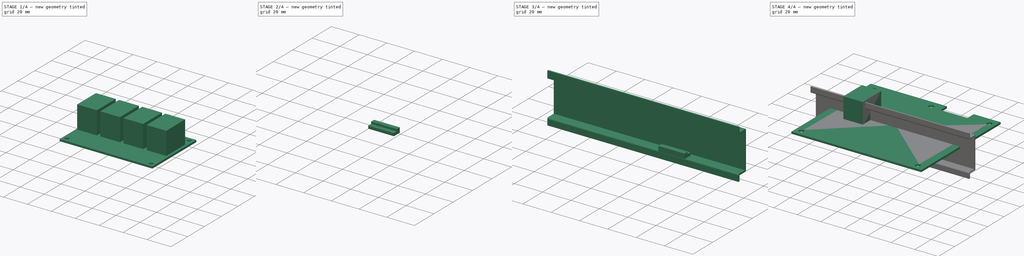
[diagram: build sequence overview — one tinted view per stage of 4, left to right]
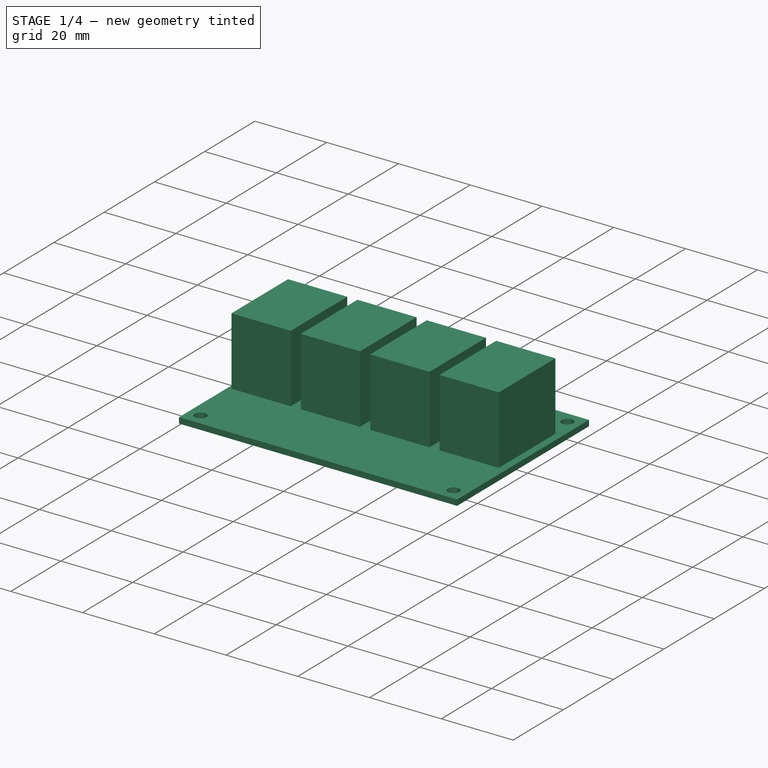
[diagram: stage 1 of 4 — iso view after this stage's code; geometry added in this stage tinted green]
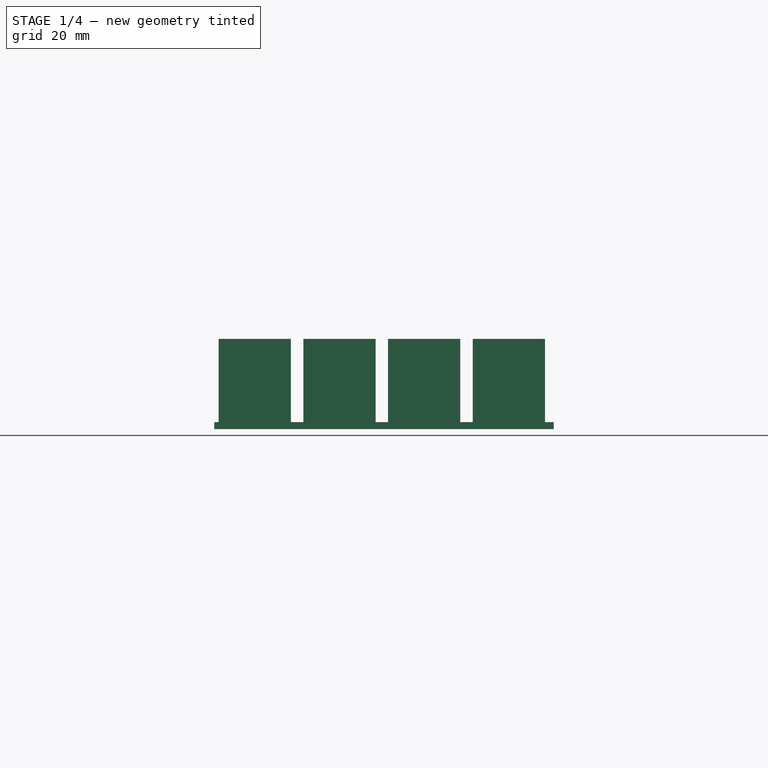
[diagram: stage 1 of 4 — front view after this stage's code; geometry added in this stage tinted green]
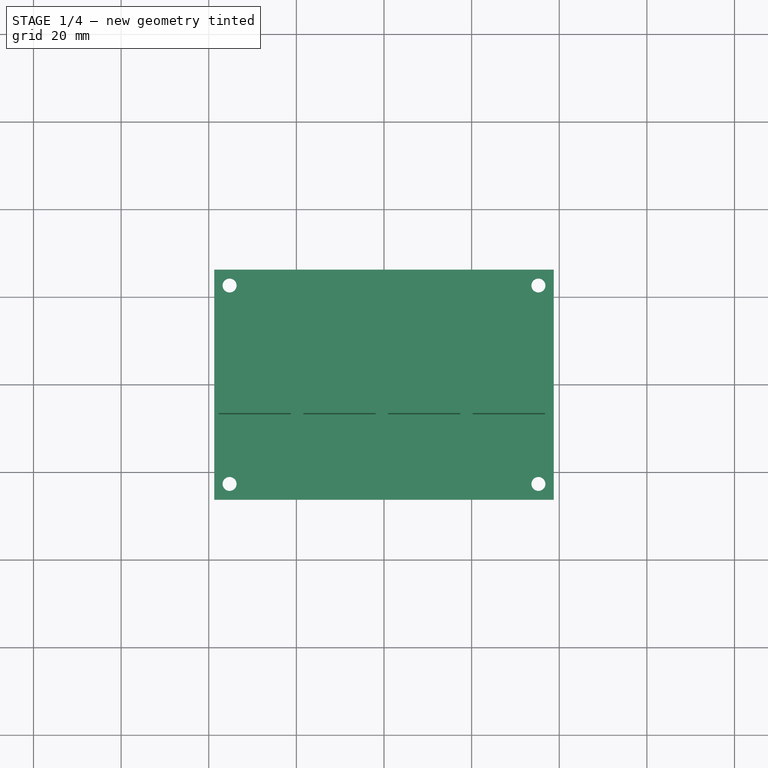
[diagram: stage 1 of 4 — top view after this stage's code; geometry added in this stage tinted green]
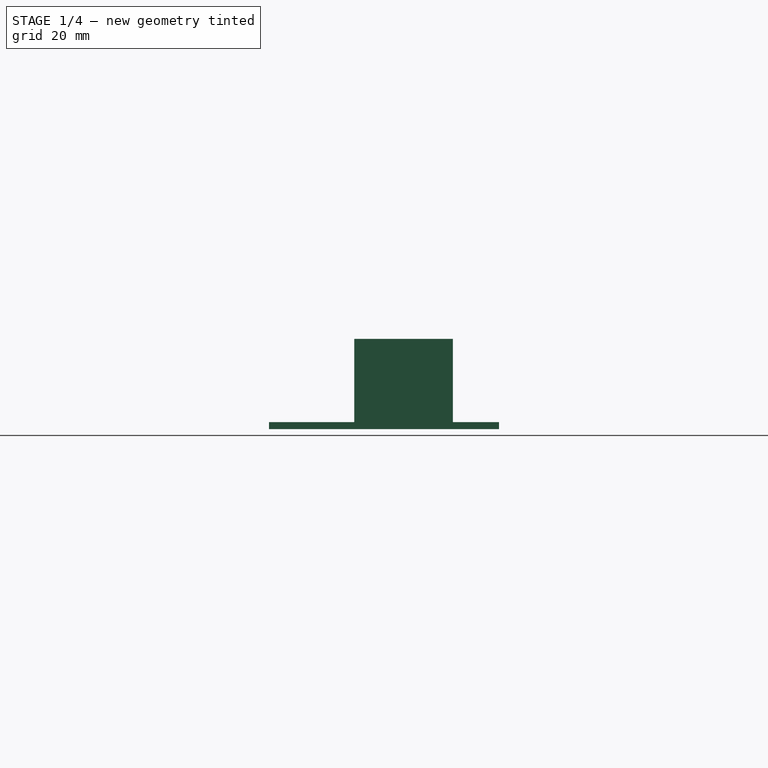
[diagram: stage 1 of 4 — right view after this stage's code; geometry added in this stage tinted green]
FCSTD DOCUMENT  (FreeCAD 0.18R16131 (Git))
Label: autopool_box
License: All rights reserved
LicenseURL: http://en.wikipedia.org/wiki/All_rights_reserved
objects: Sketcher::SketchObject×8, PartDesign::Pad×8, PartDesign::Body×6, App::Part×4, PartDesign::Fillet×2, PartDesign::ShapeBinder×2, PartDesign::LinearPattern×1, Part::Mirroring×1
note: 36 computed .brp shape members not serialized (recipe doc carries the construction recipe); baked Part::Feature solids carry a one-line shape summary decoded from their .brp

FEATURE [Sketcher::SketchObject] Sketch
  MapMode = 5
  Support = -> [XY_Plane001]
  sketch-geometry (12):
    g0: LineSegment StartX=-38.75 StartY=26.25 StartZ=0 EndX=38.75 EndY=26.25 EndZ=0
    g1: LineSegment StartX=38.75 StartY=26.25 StartZ=0 EndX=38.75 EndY=-26.25 EndZ=0
    g2: LineSegment StartX=38.75 StartY=-26.25 StartZ=0 EndX=-38.75 EndY=-26.25 EndZ=0
    g3: LineSegment StartX=-38.75 StartY=-26.25 StartZ=0 EndX=-38.75 EndY=26.25 EndZ=0
    g4: Circle CenterX=-35.25 CenterY=22.65 CenterZ=0 NormalX=0 NormalY=0 NormalZ=1 AngleXU=0 Radius=1.6
    g5: Circle CenterX=-35.25 CenterY=-22.65 CenterZ=0 NormalX=0 NormalY=0 NormalZ=1 AngleXU=0 Radius=1.6
    g6: Circle CenterX=35.25 CenterY=22.65 CenterZ=0 NormalX=0 NormalY=0 NormalZ=1 AngleXU=0 Radius=1.6
    g7: Circle CenterX=35.25 CenterY=-22.65 CenterZ=0 NormalX=0 NormalY=0 NormalZ=1 AngleXU=0 Radius=1.6
    g8: LineSegment [constr] StartX=-35.25 StartY=22.65 StartZ=0 EndX=35.25 EndY=22.65 EndZ=0
    g9: LineSegment [constr] StartX=35.25 StartY=22.65 StartZ=0 EndX=35.25 EndY=-22.65 EndZ=0
    g10: LineSegment [constr] StartX=35.25 StartY=-22.65 StartZ=0 EndX=-35.25 EndY=-22.65 EndZ=0
    g11: LineSegment [constr] StartX=-35.25 StartY=-22.65 StartZ=0 EndX=-35.25 EndY=22.65 EndZ=0
  constraints (31):
    c: Coincident(g0,g1)
    c: Coincident(g1,g2)
    c: Coincident(g2,g3)
    c: Coincident(g3,g0)
    c: Horizontal(g0)
    c: Horizontal(g2)
    c: Vertical(g1)
    c: Vertical(g3)
    c: Symmetric(g0,g1,g-1)
    c: DistanceX(g0,g0) = 77.5
    c: DistanceY(g1,g0) = 52.5
    c: DistanceY(g4,g0) = 3.6
    c: DistanceX(g0,g4) = 3.5
    c: Diameter(g4) = 3.2
    c: Equal(g4,g5)
    c: Equal(g5,g7)
    c: Equal(g7,g6)
    c: Coincident(g8,g9)
    c: Coincident(g9,g10)
    c: Coincident(g10,g11)
    c: Coincident(g11,g8)
    c: Horizontal(g8)
    c: Horizontal(g10)
    c: Vertical(g9)
    c: Vertical(g11)
    c: Coincident(g8,g4)
    c: DistanceX(g9,g1) = 3.5
    c: DistanceY(g1,g9) = 3.6
    c: Coincident(g6,g8)
    c: Coincident(g5,g10)
    c: Coincident(g7,g9)
FEATURE [PartDesign::Pad] Pad
  Length = 1.6
  Length2 = 100
  Profile = -> Sketch
  Type = 0
FEATURE [PartDesign::Body] Body003
  Group = -> [Sketch003,Pad003]
  Origin = -> Origin006
  Tip = -> Pad003
FEATURE [Sketcher::SketchObject] Sketch004
  MapMode = 5
  Placement = pos=(0,0,1.6) rot=(0,0,1;0rad)
  Support = -> [Pad]
  sketch-geometry (4):
    g0: LineSegment StartX=-37.75 StartY=15.7124 StartZ=0 EndX=-21.25 EndY=15.7124 EndZ=0
    g1: LineSegment StartX=-21.25 StartY=15.7124 StartZ=0 EndX=-21.25 EndY=-6.78761 EndZ=0
    g2: LineSegment StartX=-21.25 StartY=-6.78761 StartZ=0 EndX=-37.75 EndY=-6.78761 EndZ=0
    g3: LineSegment StartX=-37.75 StartY=-6.78761 StartZ=0 EndX=-37.75 EndY=15.7124 EndZ=0
  constraints (10):
    c: Coincident(g0,g1)
    c: Coincident(g1,g2)
    c: Coincident(g2,g3)
    c: Coincident(g3,g0)
    c: Horizontal(g0)
    c: Horizontal(g2)
    c: Vertical(g1)
    c: Vertical(g3)
    c: DistanceY(g1,g1) = 22.5
    c: DistanceX(g0,g0) = 16.5
FEATURE [PartDesign::Pad] Pad004
  BaseFeature = -> Pad
  Length = 19
  Length2 = 100
  Profile = -> Sketch004
  Type = 0
FEATURE [PartDesign::LinearPattern] LinearPattern
  BaseFeature = -> Pad004
  Direction = -> X_Axis001
  Length = 58
  Occurrences = 4
  Originals = -> [Pad004]
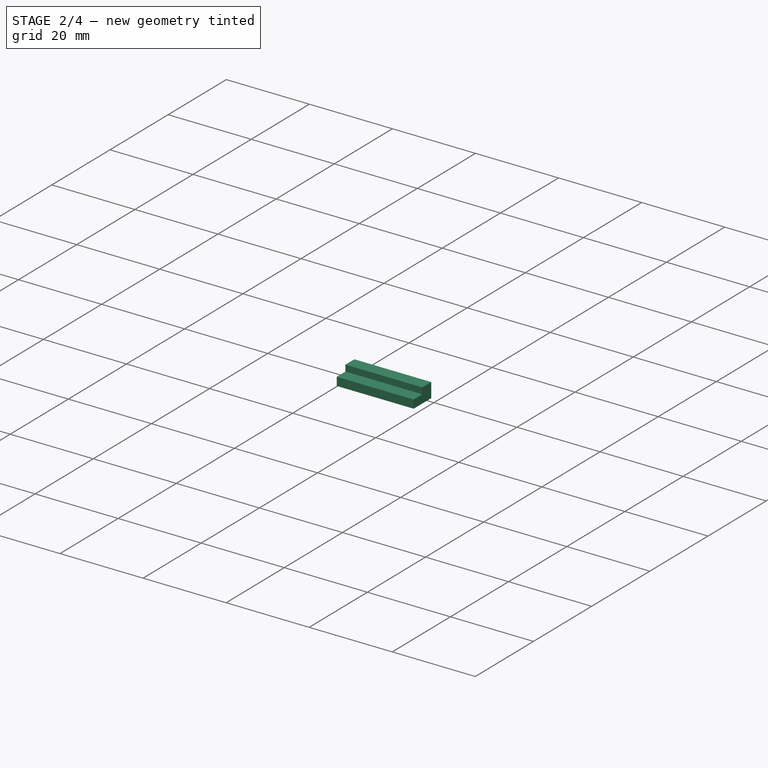
[diagram: stage 2 of 4 — iso view after this stage's code; geometry added in this stage tinted green]
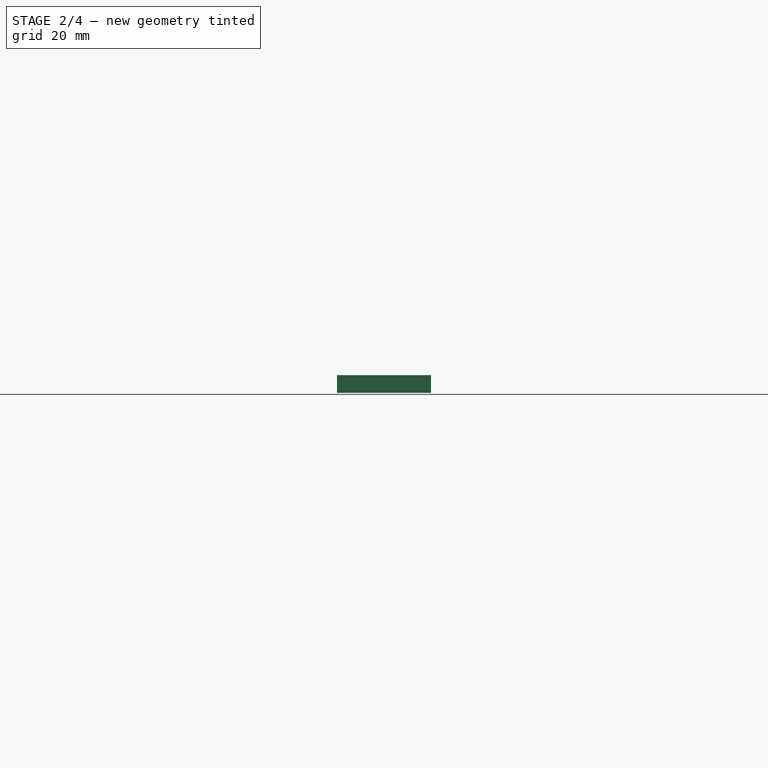
[diagram: stage 2 of 4 — front view after this stage's code; geometry added in this stage tinted green]
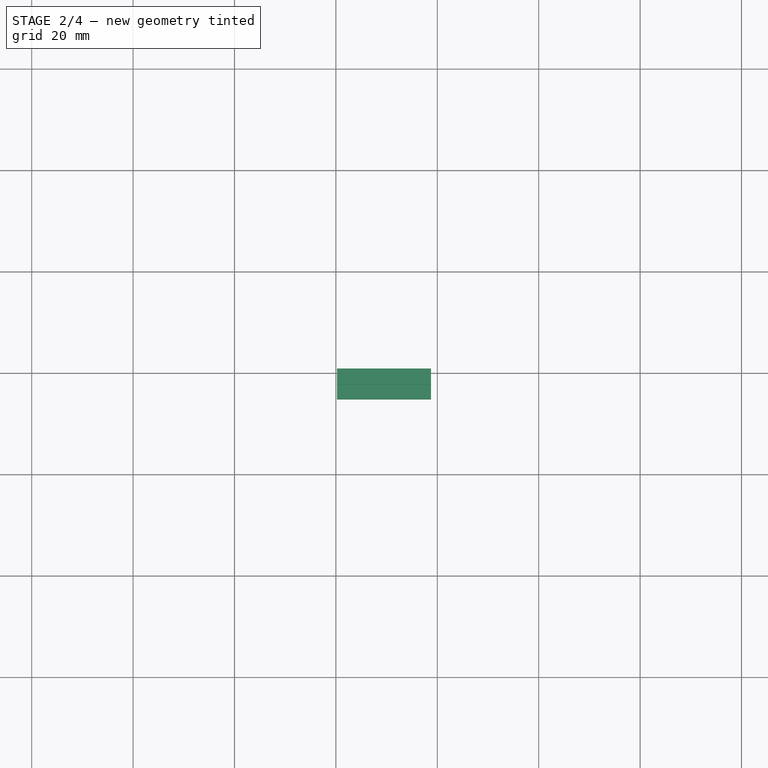
[diagram: stage 2 of 4 — top view after this stage's code; geometry added in this stage tinted green]
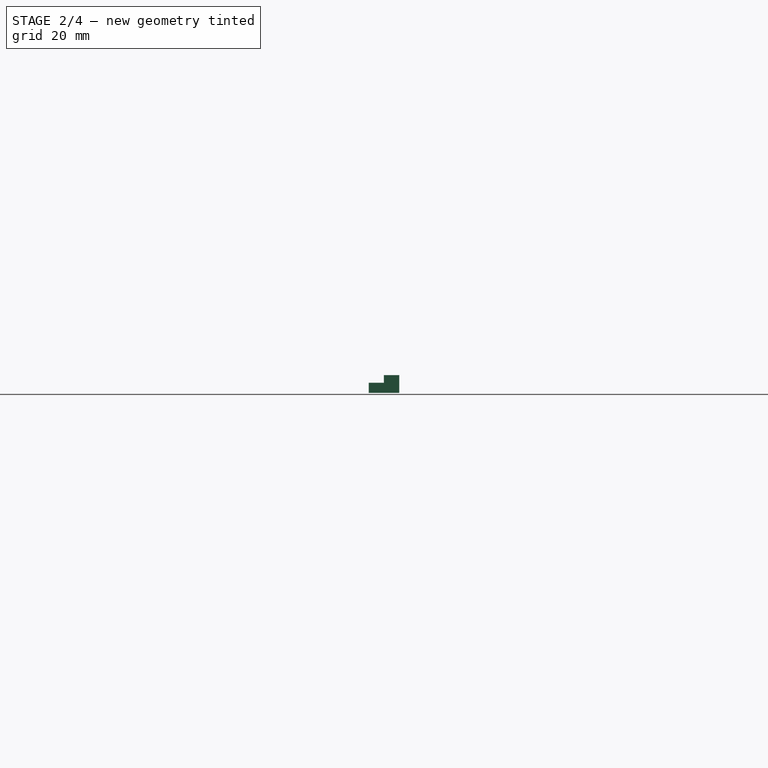
[diagram: stage 2 of 4 — right view after this stage's code; geometry added in this stage tinted green]
FEATURE [PartDesign::Body] Body004
  Group = -> [Sketch005,Pad005,Fillet,Fillet001]
  Origin = -> Origin007
  Tip = -> Fillet001
FEATURE [App::Part] Part002  label="din_rail_part"
  Group = -> [Body004]
  Origin = -> Origin004
  Placement = pos=(0,0,-9.5) rot=(1,0,0;-1.5708rad)
FEATURE [PartDesign::ShapeBinder] ShapeBinder
  Support = -> [LinearPattern]
  TraceSupport = false
FEATURE [Sketcher::SketchObject] Sketch006
  ExternalGeometry = -> [ShapeBinder]
  MapMode = 5
  Placement = pos=(0,0,0) rot=(1,0,0;3.14159rad)
  Support = -> [ShapeBinder]
  sketch-geometry (6):
    g0: LineSegment StartX=38.75 StartY=26.25 StartZ=0 EndX=20.2255 EndY=26.25 EndZ=0
    g1: LineSegment StartX=20.2255 StartY=26.25 StartZ=0 EndX=20.2255 EndY=-26.25 EndZ=0
    g2: LineSegment StartX=20.2255 StartY=-26.25 StartZ=0 EndX=38.75 EndY=-26.25 EndZ=0
    g3: LineSegment StartX=38.75 StartY=-26.25 StartZ=0 EndX=38.75 EndY=26.25 EndZ=0
    g4: Circle CenterX=35.25 CenterY=-22.65 CenterZ=0 NormalX=0 NormalY=0 NormalZ=1 AngleXU=0 Radius=1.6
    g5: Circle CenterX=35.25 CenterY=22.65 CenterZ=0 NormalX=0 NormalY=0 NormalZ=1 AngleXU=0 Radius=1.6
  constraints (12):
    c: Coincident(g0,g1)
    c: Coincident(g1,g2)
    c: Coincident(g2,g3)
    c: Coincident(g3,g0)
    c: Horizontal(g0)
    c: Horizontal(g2)
    c: Vertical(g1)
    c: Vertical(g3)
    c: Coincident(g0,g-4)
    c: PointOnObject(g1,g-5)
    c: Coincident(g4,g-6)
    c: Coincident(g5,g-7)
FEATURE [PartDesign::Pad] Pad006
  Length = 2
  Length2 = 100
  Profile = -> Sketch006
  Type = 0
FEATURE [PartDesign::Body] Body005  label="base"
  Group = -> [ShapeBinder,Sketch006,Pad006]
  Origin = -> Origin009
  Tip = -> Pad006
FEATURE [PartDesign::ShapeBinder] ShapeBinder001
  Placement = pos=(0,0,-2) rot=(0,0,1;0rad)
  Support = -> [Pad006]
  TraceSupport = false
FEATURE [Sketcher::SketchObject] Sketch009
  ExternalGeometry = -> [ShapeBinder001]
  MapMode = 5
  Placement = pos=(0,0,-2) rot=(1,0,0;3.14159rad)
  Support = -> [ShapeBinder001]
  sketch-geometry (4):
    g0: LineSegment StartX=20.2255 StartY=-17.8362 StartZ=0 EndX=38.75 EndY=-17.8362 EndZ=0
    g1: LineSegment StartX=38.75 StartY=-17.8362 StartZ=0 EndX=38.75 EndY=-20.8846 EndZ=0
    g2: LineSegment StartX=38.75 StartY=-20.8846 StartZ=0 EndX=20.2255 EndY=-20.8846 EndZ=0
    g3: LineSegment StartX=20.2255 StartY=-20.8846 StartZ=0 EndX=20.2255 EndY=-17.8362 EndZ=0
  constraints (10):
    c: Coincident(g0,g1)
    c: Coincident(g1,g2)
    c: Coincident(g2,g3)
    c: Coincident(g3,g0)
    c: Horizontal(g0)
    c: Horizontal(g2)
    c: Vertical(g1)
    c: Vertical(g3)
    c: PointOnObject(g0,g-3)
    c: PointOnObject(g1,g-4)
FEATURE [PartDesign::Pad] Pad009
  Length = 1.5
  Length2 = 100
  Placement = pos=(0,0,-2) rot=(0,0,1;0rad)
  Profile = -> Sketch009
  Type = 0
FEATURE [Sketcher::SketchObject] Sketch010
  ExternalGeometry = -> [Pad009]
  MapMode = 5
  Placement = pos=(0,0,-3.5) rot=(1,0,0;3.14159rad)
  Support = -> [Pad009]
  sketch-geometry (4):
    g0: LineSegment StartX=20.2255 StartY=-20.8846 StartZ=0 EndX=38.75 EndY=-20.8846 EndZ=0
    g1: LineSegment StartX=38.75 StartY=-20.8846 StartZ=0 EndX=38.75 EndY=-14.8508 EndZ=0
    g2: LineSegment StartX=38.75 StartY=-14.8508 StartZ=0 EndX=20.2255 EndY=-14.8508 EndZ=0
    g3: LineSegment StartX=20.2255 StartY=-14.8508 StartZ=0 EndX=20.2255 EndY=-20.8846 EndZ=0
  constraints (10):
    c: Coincident(g0,g1)
    c: Coincident(g1,g2)
    c: Coincident(g2,g3)
    c: Coincident(g3,g0)
    c: Horizontal(g0)
    c: Horizontal(g2)
    c: Vertical(g1)
    c: Vertical(g3)
    c: Coincident(g0,g-3)
    c: PointOnObject(g1,g-4)
FEATURE [PartDesign::Pad] Pad010
  BaseFeature = -> Pad009
  Length = 2
  Length2 = 100
  Placement = pos=(0,0,-2) rot=(0,0,1;0rad)
  Profile = -> Sketch010
  Type = 0
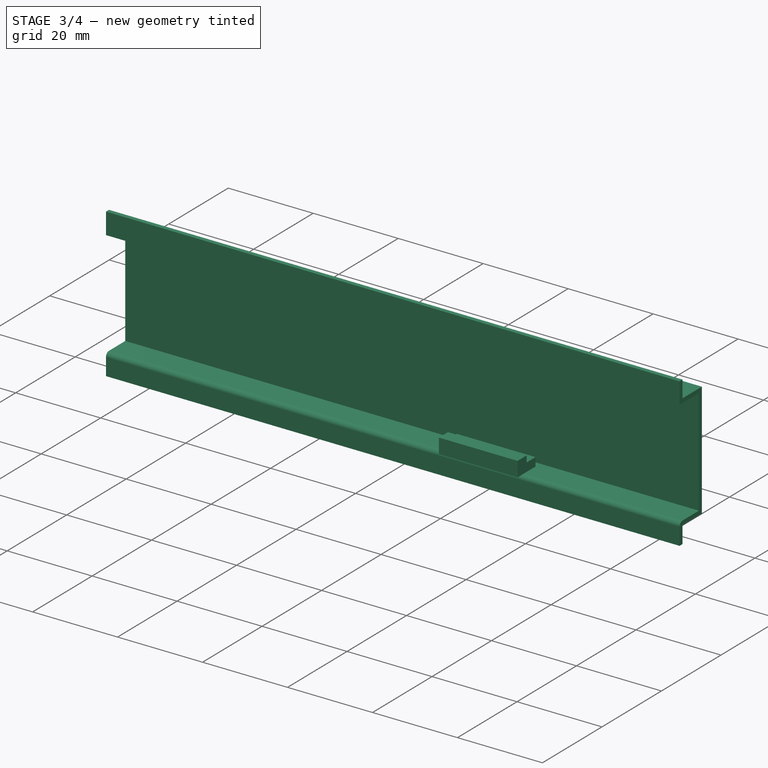
[diagram: stage 3 of 4 — iso view after this stage's code; geometry added in this stage tinted green]
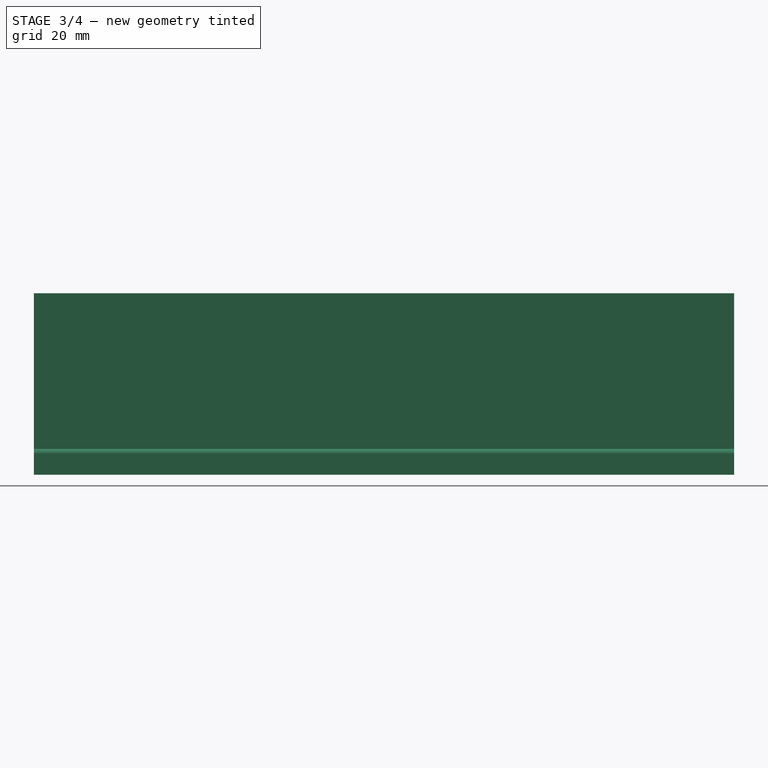
[diagram: stage 3 of 4 — front view after this stage's code; geometry added in this stage tinted green]
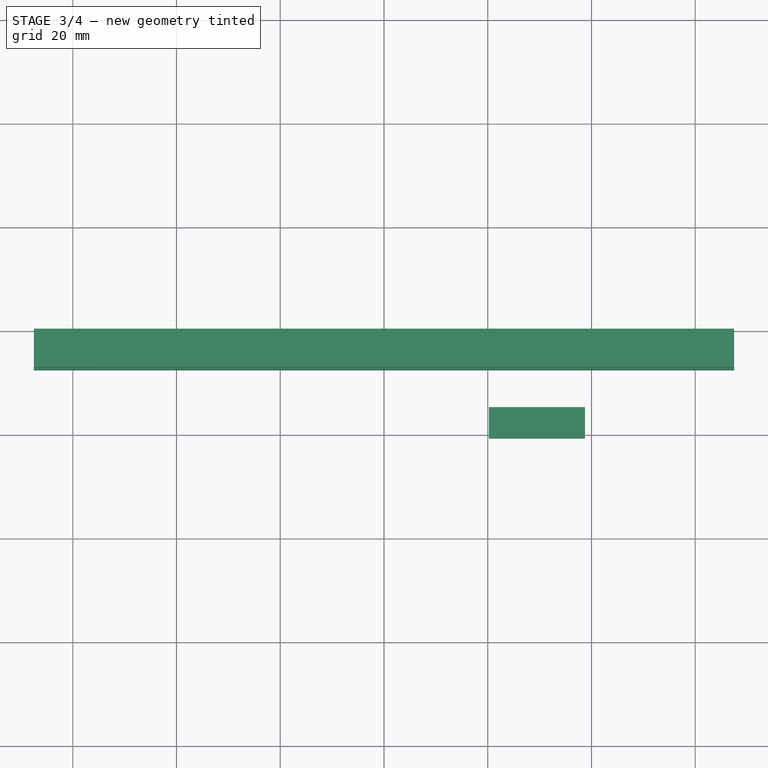
[diagram: stage 3 of 4 — top view after this stage's code; geometry added in this stage tinted green]
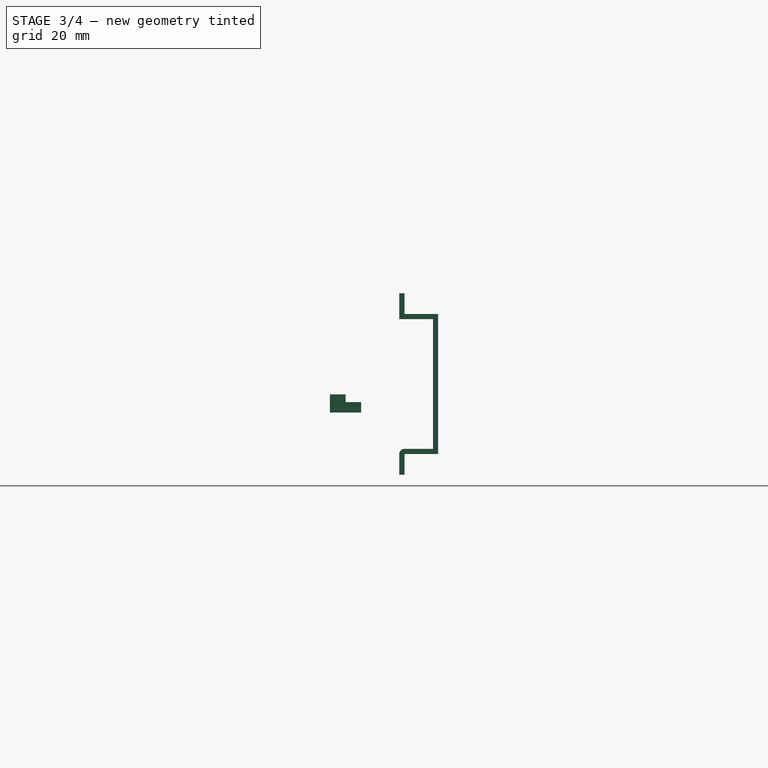
[diagram: stage 3 of 4 — right view after this stage's code; geometry added in this stage tinted green]
FEATURE [PartDesign::Body] Body
  Group = -> [Sketch,Pad,Sketch004,Pad004,LinearPattern]
  Origin = -> Origin001
  Tip = -> LinearPattern
FEATURE [App::Part] Part  label="relays4_part"
  Group = -> [Body,Body003]
  Origin = -> Origin
FEATURE [Sketcher::SketchObject] Sketch005
  MapMode = 5
  Placement = pos=(0,0,0) rot=(0.57735,0.57735,0.57735;2.0944rad)
  Support = -> [YZ_Plane007]
  sketch-geometry (12):
    g0: LineSegment StartX=0 StartY=13.5 StartZ=0 EndX=0 EndY=-13.5 EndZ=0
    g1: LineSegment StartX=0 StartY=-13.5 StartZ=0 EndX=-6.5 EndY=-13.5 EndZ=0
    g2: LineSegment StartX=-6.5 StartY=-13.5 StartZ=0 EndX=-6.5 EndY=-17.5 EndZ=0
    g3: LineSegment StartX=-6.5 StartY=-17.5 StartZ=0 EndX=-7.5 EndY=-17.5 EndZ=0
    g4: LineSegment StartX=-7.5 StartY=-17.5 StartZ=0 EndX=-7.5 EndY=-12.5 EndZ=0
    g5: LineSegment StartX=-7.5 StartY=-12.5 StartZ=0 EndX=-1 EndY=-12.5 EndZ=0
    g6: LineSegment StartX=-1 StartY=-12.5 StartZ=0 EndX=-1 EndY=12.5 EndZ=0
    g7: LineSegment StartX=-1 StartY=12.5 StartZ=0 EndX=-7.5 EndY=12.5 EndZ=0
    g8: LineSegment StartX=-7.5 StartY=12.5 StartZ=0 EndX=-7.5 EndY=17.5 EndZ=0
    g9: LineSegment StartX=-7.5 StartY=17.5 StartZ=0 EndX=-6.5 EndY=17.5 EndZ=0
    g10: LineSegment StartX=-6.5 StartY=17.5 StartZ=0 EndX=-6.5 EndY=13.5 EndZ=0
    g11: LineSegment StartX=-6.5 StartY=13.5 StartZ=0 EndX=0 EndY=13.5 EndZ=0
  constraints (34):
    c: PointOnObject(g0,g-2)
    c: PointOnObject(g0,g-2)
    c: Coincident(g0,g1)
    c: Horizontal(g1)
    c: Coincident(g1,g2)
    c: Vertical(g2)
    c: Coincident(g2,g3)
    c: Coincident(g3,g4)
    c: Vertical(g4)
    c: Coincident(g4,g5)
    c: Horizontal(g5)
    c: Coincident(g5,g6)
    c: Coincident(g6,g7)
    c: Horizontal(g7)
    c: Coincident(g7,g8)
    c: Vertical(g8)
    c: Coincident(g8,g9)
    c: Coincident(g9,g10)
    c: Coincident(g10,g11)
    c: Coincident(g11,g0)
    c: Horizontal(g11)
    c: Horizontal(g9)
    c: Horizontal(g3)
    c: Equal(g9,g3)
    c: DistanceX(g6,g0) = 1
    c: DistanceX(g8,g9) = 1
    c: DistanceY(g7,g10) = 1
    c: DistanceY(g1,g4) = 1
    c: Symmetric(g6,g5,g-1)
    c: Equal(g11,g1)
    c: DistanceY(g3,g8) = 35
    c: DistanceX(g3,g0) = 7.5
    c: DistanceY(g0,g0) = 27
    c: Symmetric(g9,g2,g-1)
FEATURE [PartDesign::Pad] Pad005
  Length = 135
  Length2 = 100
  Midplane = true
  Placement = pos=(0,0,0) rot=(0.57735,0.57735,0.57735;2.0944rad)
  Profile = -> Sketch005
  Type = 0
FEATURE [PartDesign::Fillet] Fillet
  Base = -> Pad005 [Edge14]
  BaseFeature = -> Pad005
  Placement = pos=(0,0,0) rot=(0.57735,0.57735,0.57735;2.0944rad)
  Radius = 1
FEATURE [PartDesign::Body] Body006
  Group = -> [ShapeBinder001,Sketch009,Pad009,Sketch010,Pad010]
  Origin = -> Origin010
  Tip = -> Pad010
FEATURE [Part::Mirroring] Part__Mirroring  label="griffes"
  Base = (0,0,0)
  Normal = (0,1,0)
  Source = -> Body006
FEATURE [App::Part] Part003  label="support"
  Group = -> [Body005,Body006,Part__Mirroring]
  Origin = -> Origin008
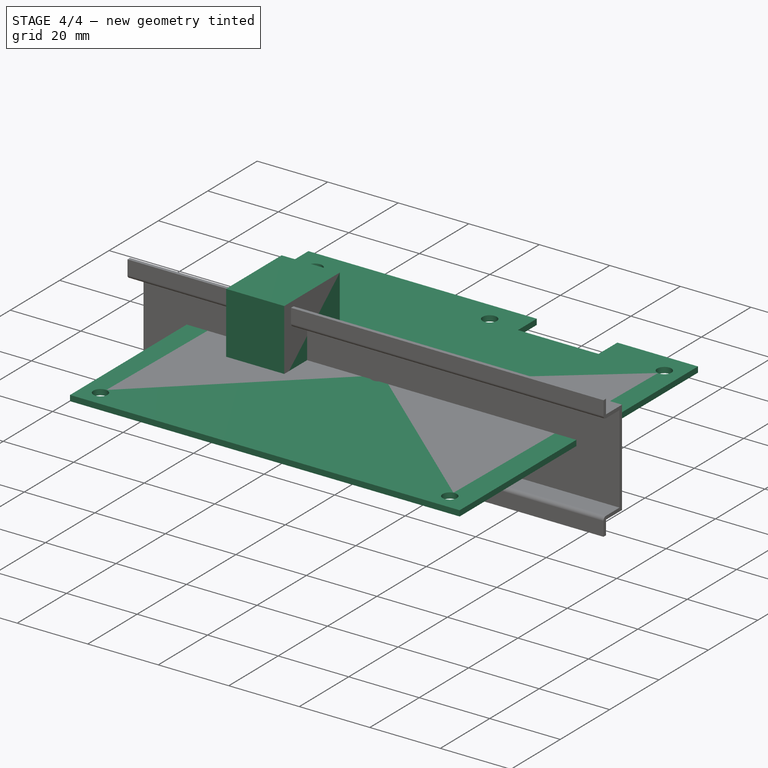
[diagram: stage 4 of 4 — iso view after this stage's code; geometry added in this stage tinted green]
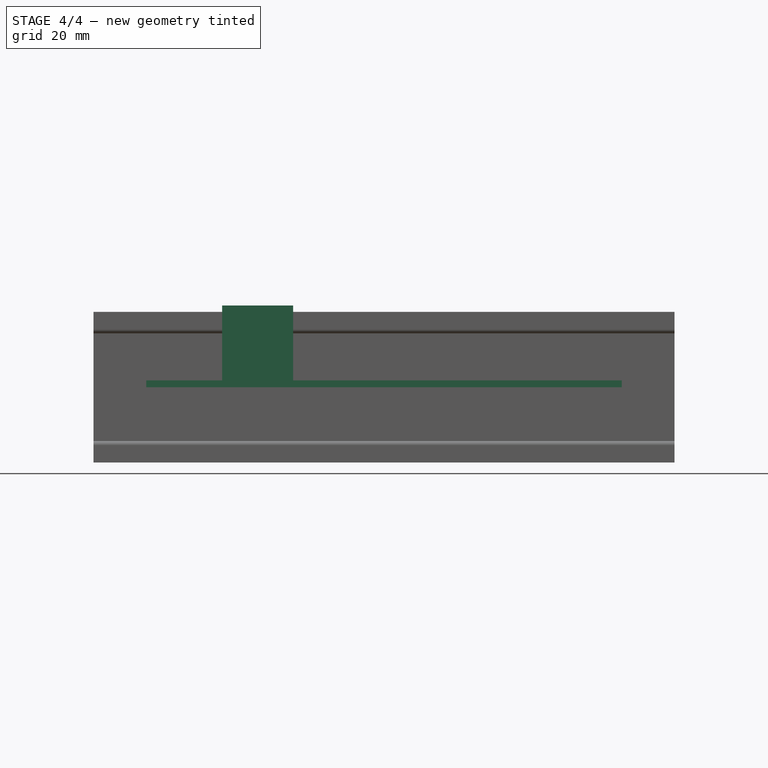
[diagram: stage 4 of 4 — front view after this stage's code; geometry added in this stage tinted green]
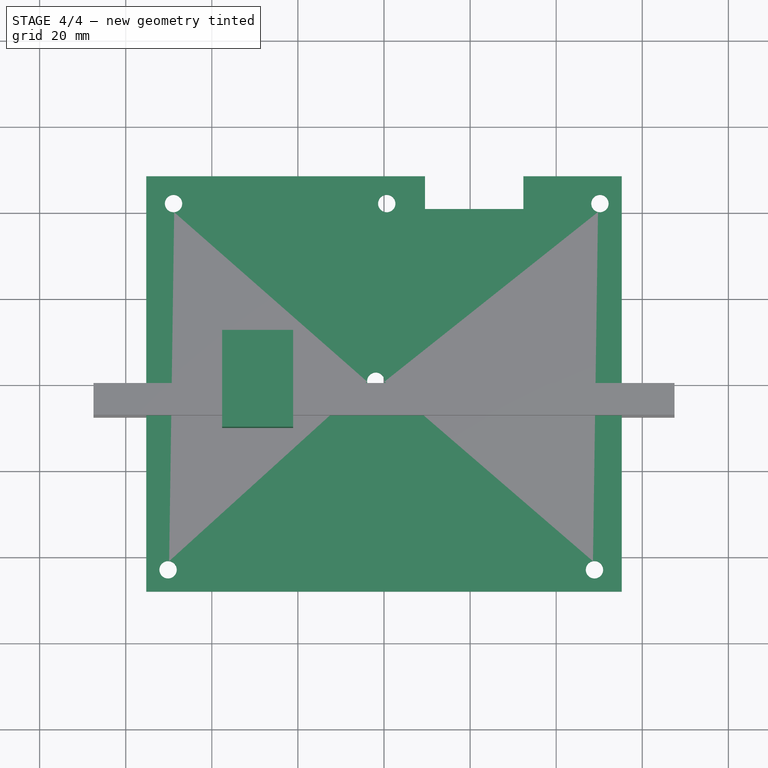
[diagram: stage 4 of 4 — top view after this stage's code; geometry added in this stage tinted green]
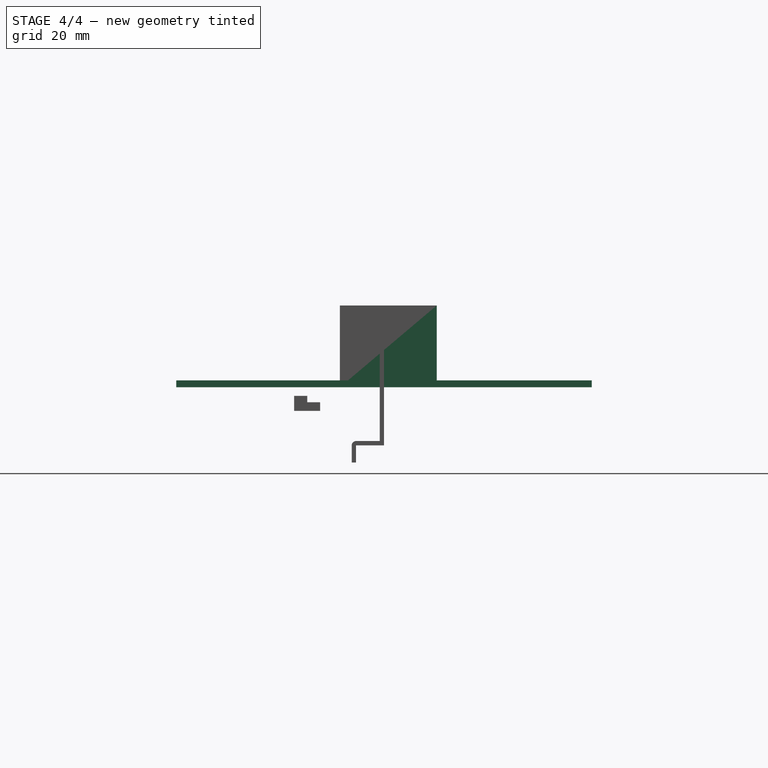
[diagram: stage 4 of 4 — right view after this stage's code; geometry added in this stage tinted green]
FEATURE [Sketcher::SketchObject] Sketch001
  MapMode = 5
  Support = -> [XY_Plane003]
  sketch-geometry (16):
    g0: LineSegment StartX=-55.245 StartY=48.26 StartZ=0 EndX=9.525 EndY=48.26 EndZ=0
    g1: LineSegment StartX=9.525 StartY=48.26 StartZ=0 EndX=9.525 EndY=40.64 EndZ=0
    g2: LineSegment StartX=9.525 StartY=40.64 StartZ=0 EndX=32.385 EndY=40.64 EndZ=0
    g3: LineSegment StartX=32.385 StartY=40.64 StartZ=0 EndX=32.385 EndY=48.26 EndZ=0
    g4: LineSegment StartX=32.385 StartY=48.26 StartZ=0 EndX=55.245 EndY=48.26 EndZ=0
    g5: LineSegment StartX=55.245 StartY=48.26 StartZ=0 EndX=55.245 EndY=-48.26 EndZ=0
    g6: LineSegment StartX=55.245 StartY=-48.26 StartZ=0 EndX=-55.245 EndY=-48.26 EndZ=0
    g7: LineSegment StartX=-55.245 StartY=-48.26 StartZ=0 EndX=-55.245 EndY=48.26 EndZ=0
    g8: LineSegment [constr] StartX=-48.895 StartY=41.91 StartZ=0 EndX=50.165 EndY=41.91 EndZ=0
    g9: LineSegment [constr] StartX=-50.165 StartY=-43.18 StartZ=0 EndX=48.895 EndY=-43.18 EndZ=0
    g10: Circle CenterX=-48.895 CenterY=41.91 CenterZ=0 NormalX=0 NormalY=0 NormalZ=1 AngleXU=0 Radius=2.015
    g11: Circle CenterX=-50.165 CenterY=-43.18 CenterZ=0 NormalX=0 NormalY=0 NormalZ=1 AngleXU=0 Radius=2.015
    g12: Circle CenterX=48.895 CenterY=-43.18 CenterZ=0 NormalX=0 NormalY=0 NormalZ=1 AngleXU=0 Radius=2.015
    g13: Circle CenterX=50.165 CenterY=41.91 CenterZ=0 NormalX=0 NormalY=0 NormalZ=1 AngleXU=0 Radius=2.015
    g14: Circle CenterX=0.635 CenterY=41.91 CenterZ=0 NormalX=0 NormalY=0 NormalZ=1 AngleXU=0 Radius=2.015
    g15: Circle CenterX=-1.905 CenterY=0.635 CenterZ=0 NormalX=0 NormalY=0 NormalZ=1 AngleXU=0 Radius=2.015
  constraints (45):
    c: Horizontal(g0)
    c: Coincident(g0,g1)
    c: Vertical(g1)
    c: Coincident(g1,g2)
    c: Horizontal(g2)
    c: Coincident(g2,g3)
    c: Vertical(g3)
    c: Coincident(g3,g4)
    c: Horizontal(g4)
    c: Coincident(g4,g5)
    c: Vertical(g5)
    c: Coincident(g5,g6)
    c: Horizontal(g6)
    c: Coincident(g6,g7)
    c: Coincident(g7,g0)
    c: Vertical(g7)
    c: Equal(g5,g7)
    c: DistanceY(g5,g4) = 96.52
    c: DistanceX(g3,g4) = 22.86
    c: DistanceX(g1,g2) = 22.86
    c: DistanceY(g1,g0) = 7.62
    c: DistanceX(g0,g0) = 64.77
    c: Symmetric(g0,g5,g-1)
    c: Horizontal(g8)
    c: DistanceY(g8,g0) = 6.35
    c: DistanceX(g8,g4) = 5.08
    c: DistanceX(g0,g8) = 6.35
    c: Horizontal(g9)
    c: DistanceX(g9,g5) = 6.35
    c: DistanceX(g6,g9) = 5.08
    c: DistanceY(g5,g9) = 5.08
    c: Coincident(g10,g8)
    c: Coincident(g11,g9)
    c: Coincident(g12,g9)
    c: Coincident(g13,g8)
    c: PointOnObject(g14,g8)
    c: Equal(g10,g14)
    c: Equal(g14,g13)
    c: Equal(g13,g12)
    c: Equal(g12,g11)
    c: Equal(g15,g13)
    c: Diameter(g15) = 4.03
    c: DistanceX(g14,g1) = 8.89
    c: DistanceX(g15,g5) = 57.15
    c: DistanceY(g5,g15) = 48.895
FEATURE [PartDesign::Pad] Pad001
  Length = 1.6
  Length2 = 100
  Profile = -> Sketch001
  Type = 0
FEATURE [PartDesign::Body] Body001
  Group = -> [Sketch001,Pad001]
  Origin = -> Origin003
  Tip = -> Pad001
FEATURE [App::Part] Part001  label="autopool_part"
  Group = -> [Body001]
  Origin = -> Origin002
  Placement = pos=(0,0,25) rot=(0,0,1;0rad)
FEATURE [Sketcher::SketchObject] Sketch003
  MapMode = 5
  Support = -> [XY_Plane006]
  sketch-geometry (4):
    g0: LineSegment StartX=-37.6149 StartY=12.2539 StartZ=0 EndX=-21.1149 EndY=12.2539 EndZ=0
    g1: LineSegment StartX=-21.1149 StartY=12.2539 StartZ=0 EndX=-21.1149 EndY=-10.2461 EndZ=0
    g2: LineSegment StartX=-21.1149 StartY=-10.2461 StartZ=0 EndX=-37.6149 EndY=-10.2461 EndZ=0
    g3: LineSegment StartX=-37.6149 StartY=-10.2461 StartZ=0 EndX=-37.6149 EndY=12.2539 EndZ=0
  constraints (10):
    c: Coincident(g0,g1)
    c: Coincident(g1,g2)
    c: Coincident(g2,g3)
    c: Coincident(g3,g0)
    c: Horizontal(g0)
    c: Horizontal(g2)
    c: Vertical(g1)
    c: Vertical(g3)
    c: DistanceY(g1,g1) = 22.5
    c: DistanceX(g2,g2) = 16.5
FEATURE [PartDesign::Pad] Pad003
  Length = 19
  Length2 = 100
  Profile = -> Sketch003
  Type = 0
FEATURE [PartDesign::Fillet] Fillet001
  Base = -> Fillet [Edge35]
  BaseFeature = -> Fillet
  Placement = pos=(0,0,0) rot=(0.57735,0.57735,0.57735;2.0944rad)
  Radius = 1
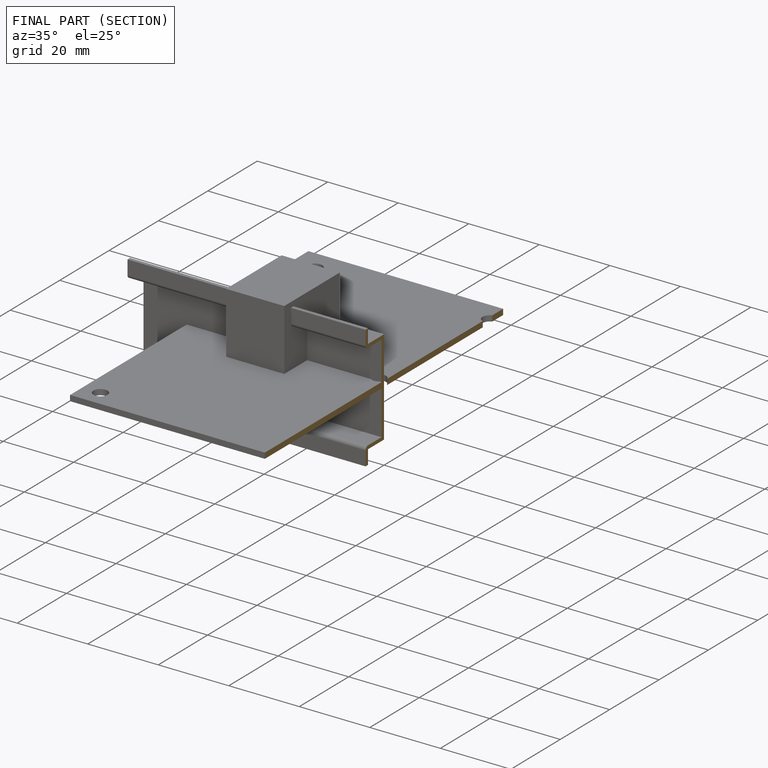
[diagram: finished part — half-section view (interior)]
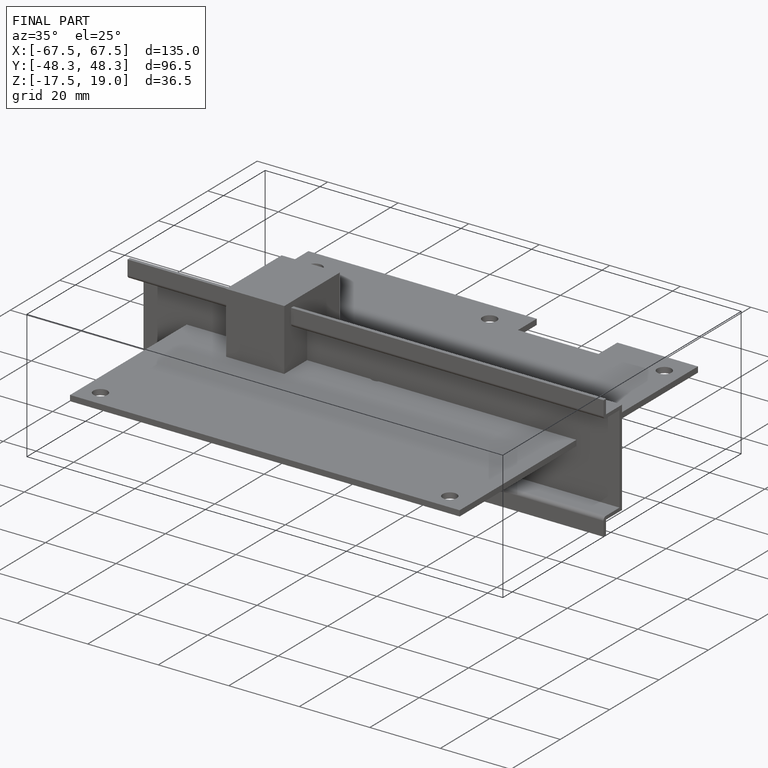
[diagram: finished part — iso view with bounding-box wireframe]
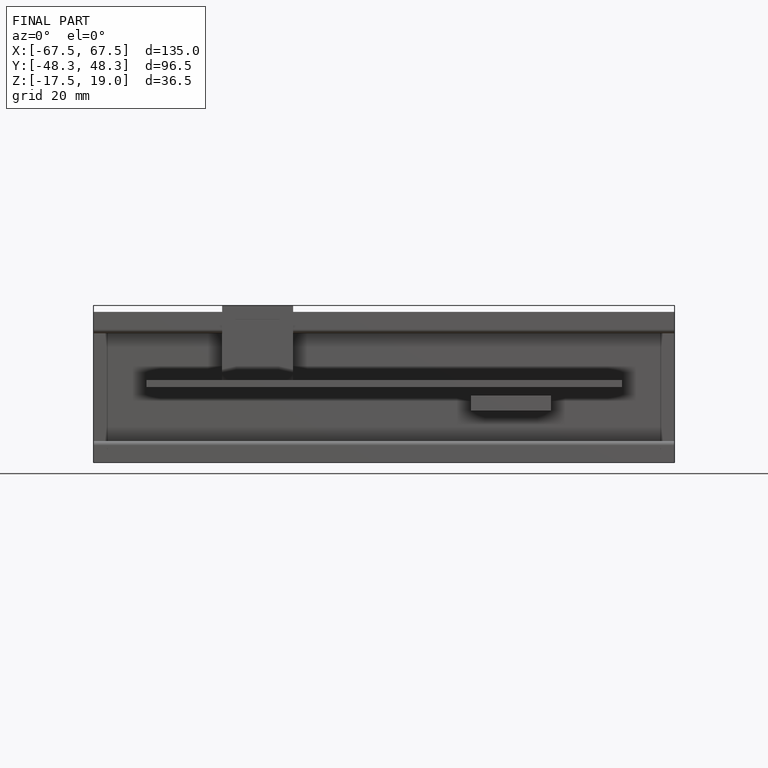
[diagram: finished part — front view with bounding-box wireframe]
